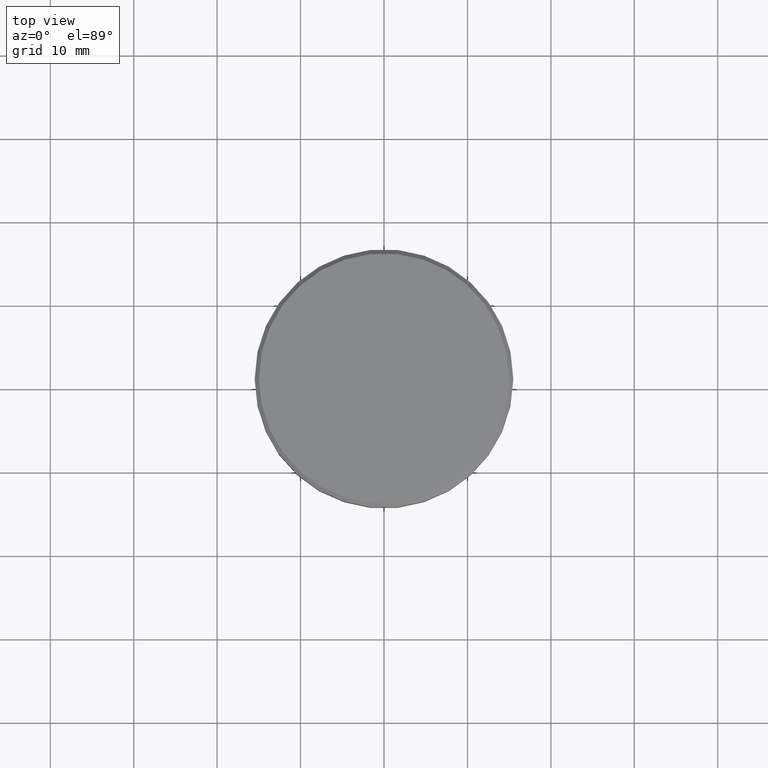
[diagram: clean part render]
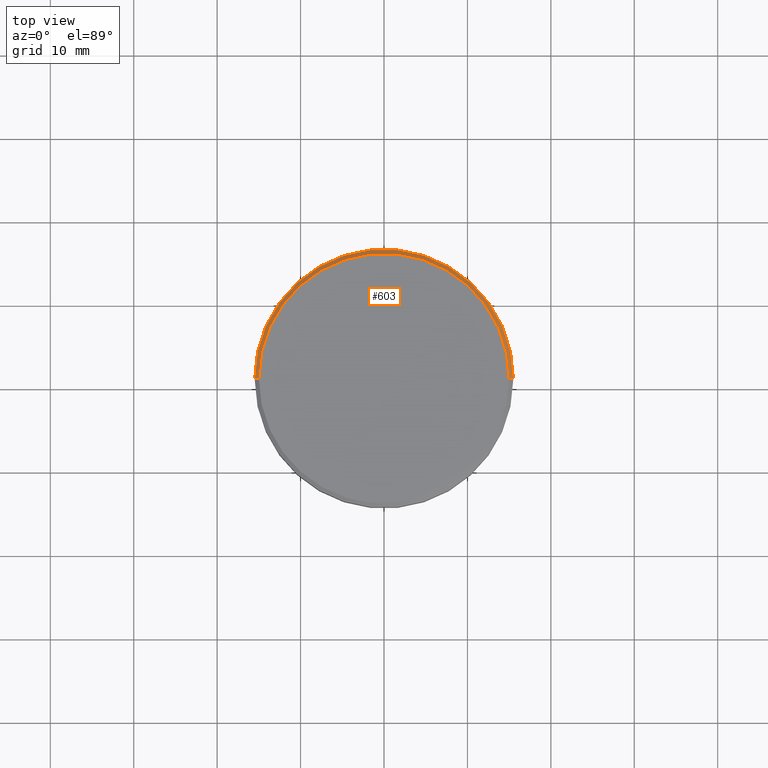
[diagram: same view with one face highlighted and labeled with its STEP entity id]
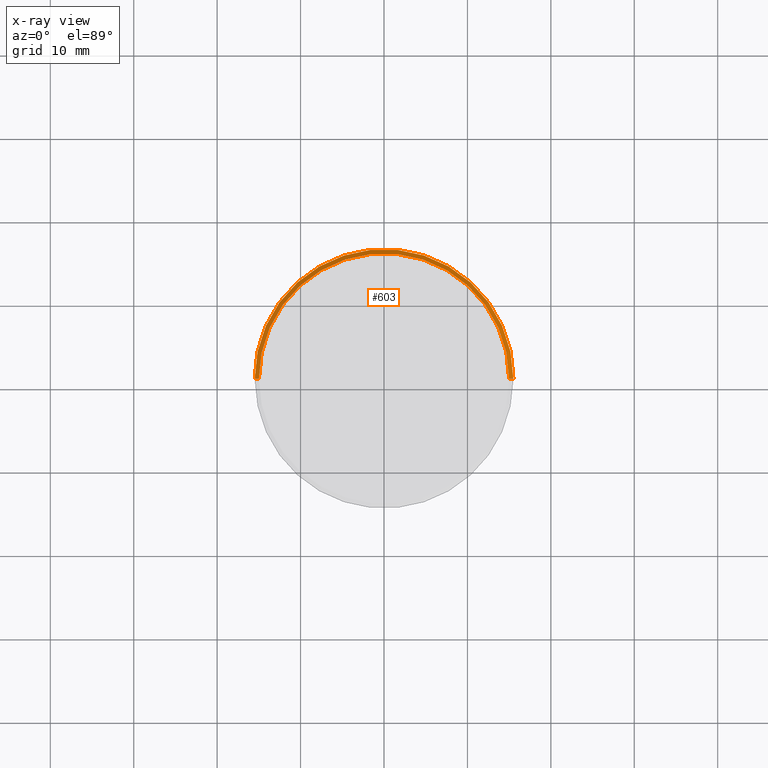
[diagram: x-ray of the same camera — body ghosted, the highlighted face saturated]
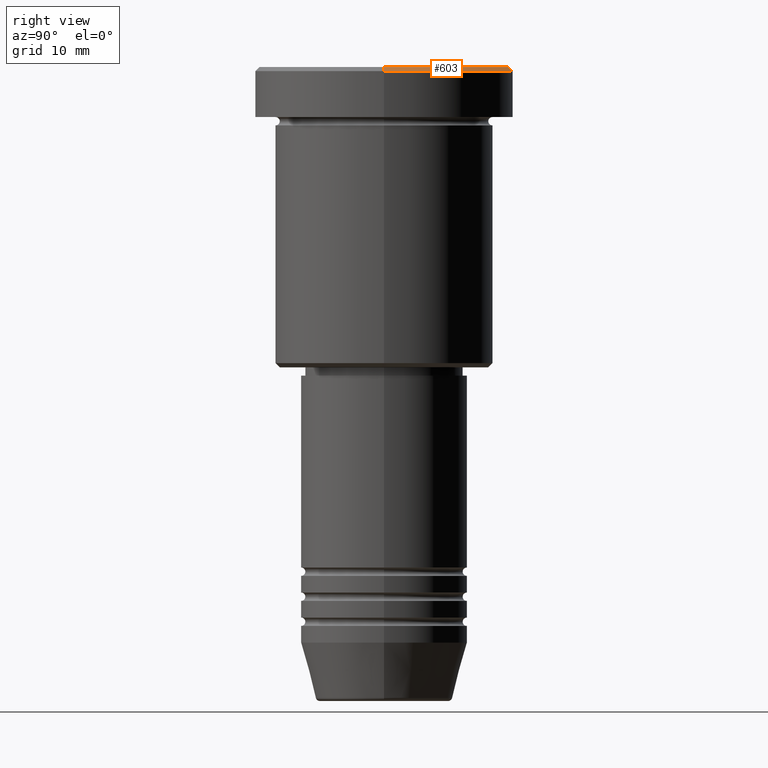
[diagram: same view with one face highlighted and labeled with its STEP entity id]
A machine part, top view. The second image highlights one B-rep face of the part: STEP entity #603.
The next image is the same camera in x-ray: the body ghosted, the highlighted face saturated — about 0% of this face is hidden behind the body in this view.
A second angle (right view) of the same face is appended — the face is thin or edge-on in the first view.
In plain terms, the highlighted conical surface has half-angle 45 deg.
Its self-contained STEP definition (entity closure, byte-faithful):
#8 = VERTEX_POINT ( 'NONE', #861 ) ;
#9 = DIRECTION ( 'NONE',  ( 0.000000000000000000, 0.000000000000000000, -1.000000000000000000 ) ) ;
#17 = AXIS2_PLACEMENT_3D ( 'NONE', #746, #9, #1106 ) ;
#68 = VERTEX_POINT ( 'NONE', #403 ) ;
#79 = ORIENTED_EDGE ( 'NONE', *, *, #530, .F. ) ;
#156 = EDGE_CURVE ( 'NONE', #893, #1139, #752, .T. ) ;
#224 = DIRECTION ( 'NONE',  ( -0.000000000000000000, -0.000000000000000000, 1.000000000000000000 ) ) ;
#282 = CARTESIAN_POINT ( 'NONE',  ( -15.00000000000001421, 0.000000000000000000, 0.000000000000000000 ) ) ;
#312 = VECTOR ( 'NONE', #765, 1000.000000000000000 ) ;
#398 = CARTESIAN_POINT ( 'NONE',  ( 15.00000000000001421, 1.836970198721031561E-15, 0.000000000000000000 ) ) ;
#403 = CARTESIAN_POINT ( 'NONE',  ( -15.50000000000000000, 1.898202538678397557E-15, -0.4999999999999987232 ) ) ;
#411 = CARTESIAN_POINT ( 'NONE',  ( 0.000000000000000000, 0.000000000000000000, 0.000000000000000000 ) ) ;
#417 = EDGE_CURVE ( 'NONE', #68, #8, #428, .T. ) ;
#423 = CARTESIAN_POINT ( 'NONE',  ( -15.00000000000001421, 0.000000000000000000, 0.000000000000000000 ) ) ;
#428 = CIRCLE ( 'NONE', #17, 15.50000000000000000 ) ;
#503 = LINE ( 'NONE', #423, #982 ) ;
#530 = EDGE_CURVE ( 'NONE', #1139, #68, #503, .T. ) ;
#561 = EDGE_LOOP ( 'NONE', ( #883, #1007, #904, #79 ) ) ;
#603 = ADVANCED_FACE ( 'NONE', ( #614 ), #1012, .T. ) ;
#604 = DIRECTION ( 'NONE',  ( -0.7071067811865389130, 0.000000000000000000, -0.7071067811865561215 ) ) ;
#614 = FACE_OUTER_BOUND ( 'NONE', #561, .T. ) ;
#640 = EDGE_CURVE ( 'NONE', #893, #8, #1035, .T. ) ;
#677 = CARTESIAN_POINT ( 'NONE',  ( 15.00000000000001421, 1.867586368699714559E-15, 0.000000000000000000 ) ) ;
#690 = DIRECTION ( 'NONE',  ( -1.000000000000000000, 0.000000000000000000, 0.000000000000000000 ) ) ;
#738 = AXIS2_PLACEMENT_3D ( 'NONE', #411, #858, #690 ) ;
#746 = CARTESIAN_POINT ( 'NONE',  ( 0.000000000000000000, 0.000000000000000000, -0.4999999999999987232 ) ) ;
#752 = CIRCLE ( 'NONE', #1125, 15.00000000000001421 ) ;
#765 = DIRECTION ( 'NONE',  ( 0.7071067811865389130, 8.659560562354828088E-17, -0.7071067811865561215 ) ) ;
#858 = DIRECTION ( 'NONE',  ( 0.000000000000000000, 0.000000000000000000, -1.000000000000000000 ) ) ;
#861 = CARTESIAN_POINT ( 'NONE',  ( 15.50000000000000000, 0.000000000000000000, -0.4999999999999987232 ) ) ;
#871 = CARTESIAN_POINT ( 'NONE',  ( 0.000000000000000000, 0.000000000000000000, 0.000000000000000000 ) ) ;
#883 = ORIENTED_EDGE ( 'NONE', *, *, #156, .F. ) ;
#893 = VERTEX_POINT ( 'NONE', #677 ) ;
#904 = ORIENTED_EDGE ( 'NONE', *, *, #417, .F. ) ;
#982 = VECTOR ( 'NONE', #604, 1000.000000000000000 ) ;
#1007 = ORIENTED_EDGE ( 'NONE', *, *, #640, .T. ) ;
#1012 = CONICAL_SURFACE ( 'NONE', #738, 15.00000000000001421, 0.7853981633974361776 ) ;
#1035 = LINE ( 'NONE', #398, #312 ) ;
#1106 = DIRECTION ( 'NONE',  ( 1.000000000000000000, 0.000000000000000000, 0.000000000000000000 ) ) ;
#1122 = DIRECTION ( 'NONE',  ( 1.000000000000000000, 0.000000000000000000, 0.000000000000000000 ) ) ;
#1125 = AXIS2_PLACEMENT_3D ( 'NONE', #871, #224, #1122 ) ;
#1139 = VERTEX_POINT ( 'NONE', #282 ) ;